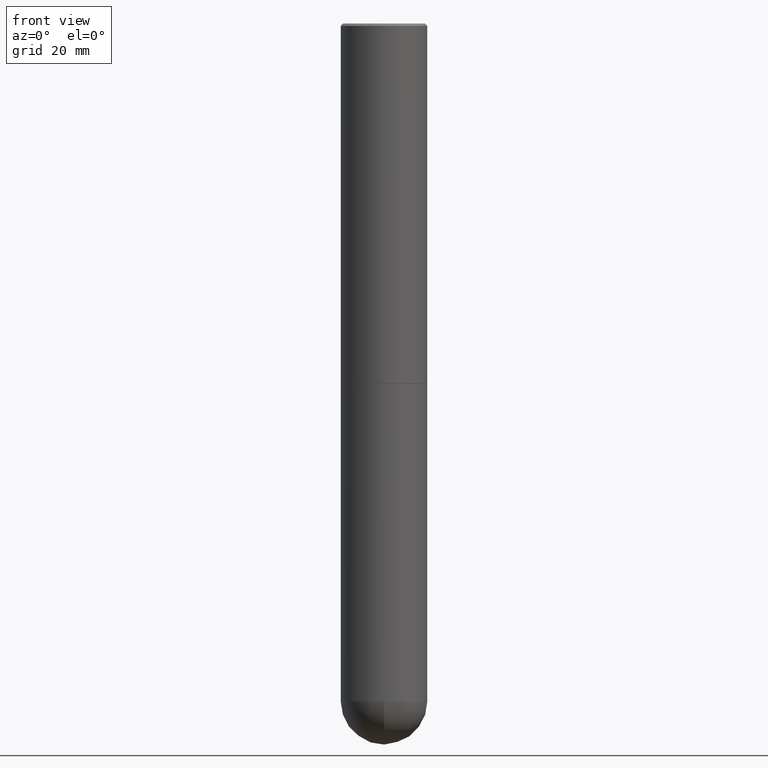
[diagram: clean part render]
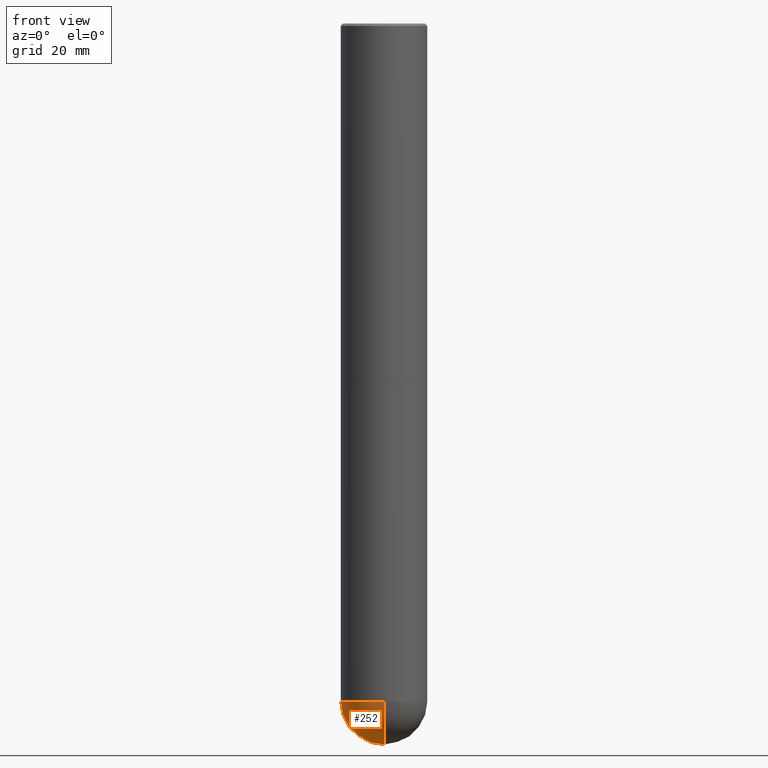
[diagram: same view with one face highlighted and labeled with its STEP entity id]
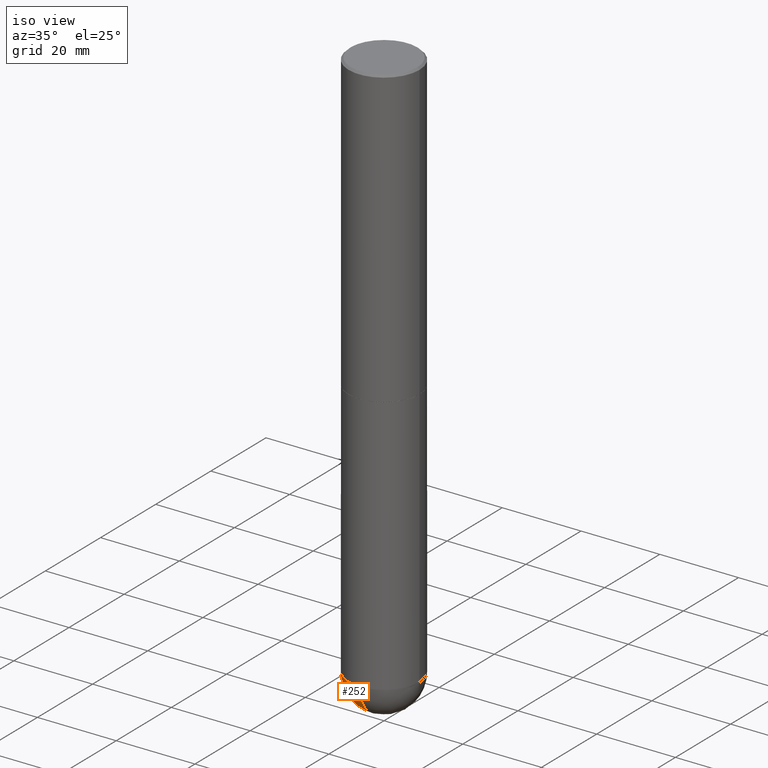
[diagram: same view with one face highlighted and labeled with its STEP entity id]
A machine part, front view. The second image highlights one B-rep face of the part: STEP entity #252.
A second angle (iso view) of the same face is appended — the face is thin or edge-on in the first view.
In plain terms, the highlighted spherical surface has radius 9.0005 mm.
Its self-contained STEP definition (entity closure, byte-faithful):
#1 = ORIENTED_EDGE ( 'NONE', *, *, #145, .T. ) ;
#13 = VERTEX_POINT ( 'NONE', #363 ) ;
#19 = AXIS2_PLACEMENT_3D ( 'NONE', #258, #381, #225 ) ;
#20 = CIRCLE ( 'NONE', #19, 0.3543500000000002204 ) ;
#21 = DIRECTION ( 'NONE',  ( 6.982962677686265922E-15, 1.000000000000000000, -3.083784951222533328E-15 ) ) ;
#38 = AXIS2_PLACEMENT_3D ( 'NONE', #153, #308, #244 ) ;
#54 = CARTESIAN_POINT ( 'NONE',  ( 1.324404438554073486E-28, -1.985591900225917417E-14, -5.551149999999999807 ) ) ;
#55 = EDGE_CURVE ( 'NONE', #297, #188, #408, .T. ) ;
#56 = DIRECTION ( 'NONE',  ( 1.000000000000000000, -6.982962677686261189E-15, 0.000000000000000000 ) ) ;
#60 = DIRECTION ( 'NONE',  ( -1.000000000000000000, 7.105427357601001070E-15, -4.926315508542082329E-29 ) ) ;
#73 = EDGE_LOOP ( 'NONE', ( #360, #1, #142, #116 ) ) ;
#88 = DIRECTION ( 'NONE',  ( -2.445468806185136597E-29, 3.491481338843145583E-15, 1.000000000000000000 ) ) ;
#112 = VERTEX_POINT ( 'NONE', #161 ) ;
#116 = ORIENTED_EDGE ( 'NONE', *, *, #55, .F. ) ;
#121 = CARTESIAN_POINT ( 'NONE',  ( -0.3543499999999999428, -1.232770860749472642E-14, -5.551149999999999807 ) ) ;
#122 = CARTESIAN_POINT ( 'NONE',  ( 1.357516416345461774E-28, -1.938173663411912545E-14, -5.551149999999999807 ) ) ;
#142 = ORIENTED_EDGE ( 'NONE', *, *, #287, .F. ) ;
#145 = EDGE_CURVE ( 'NONE', #13, #112, #295, .T. ) ;
#153 = CARTESIAN_POINT ( 'NONE',  ( 1.357516416345461774E-28, -1.938173663411912545E-14, -5.551149999999999807 ) ) ;
#161 = CARTESIAN_POINT ( 'NONE',  ( -2.517808184165781285E-15, -0.3543500000000196493, -5.551149999999998919 ) ) ;
#184 = DIRECTION ( 'NONE',  ( -7.105427357601001070E-15, -1.000000000000000000, 0.000000000000000000 ) ) ;
#186 = FACE_OUTER_BOUND ( 'NONE', #73, .T. ) ;
#188 = VERTEX_POINT ( 'NONE', #121 ) ;
#193 = CIRCLE ( 'NONE', #358, 0.3543499999999999428 ) ;
#197 = EDGE_CURVE ( 'NONE', #13, #297, #20, .T. ) ;
#215 = CARTESIAN_POINT ( 'NONE',  ( 1.324404438554073486E-28, -1.985591900225917417E-14, -5.551149999999999807 ) ) ;
#225 = DIRECTION ( 'NONE',  ( 6.982962677686265133E-15, 1.000000000000000000, 0.000000000000000000 ) ) ;
#243 = SPHERICAL_SURFACE ( 'NONE', #261, 0.3543500000000002204 ) ;
#244 = DIRECTION ( 'NONE',  ( 1.000000000000000000, -6.982962677686261189E-15, 0.000000000000000000 ) ) ;
#252 = ADVANCED_FACE ( 'NONE', ( #186 ), #243, .T. ) ;
#258 = CARTESIAN_POINT ( 'NONE',  ( 1.324404438554073486E-28, -1.985591900225917417E-14, -5.551149999999999807 ) ) ;
#261 = AXIS2_PLACEMENT_3D ( 'NONE', #215, #339, #21 ) ;
#287 = EDGE_CURVE ( 'NONE', #188, #112, #193, .T. ) ;
#295 = CIRCLE ( 'NONE', #299, 0.3543500000000002204 ) ;
#297 = VERTEX_POINT ( 'NONE', #365 ) ;
#299 = AXIS2_PLACEMENT_3D ( 'NONE', #54, #60, #184 ) ;
#308 = DIRECTION ( 'NONE',  ( -2.445468806185136597E-29, 3.491481338843145583E-15, 1.000000000000000000 ) ) ;
#339 = DIRECTION ( 'NONE',  ( -1.000000000000000000, 6.982962677686265922E-15, -4.883557194083112340E-29 ) ) ;
#358 = AXIS2_PLACEMENT_3D ( 'NONE', #122, #88, #56 ) ;
#360 = ORIENTED_EDGE ( 'NONE', *, *, #197, .F. ) ;
#363 = CARTESIAN_POINT ( 'NONE',  ( 1.412574766574097249E-28, -2.107142773501435227E-14, -5.905499999999999972 ) ) ;
#365 = CARTESIAN_POINT ( 'NONE',  ( 2.474412824838263195E-15, 0.3543499999999804584, -5.551150000000000695 ) ) ;
#381 = DIRECTION ( 'NONE',  ( 1.000000000000000000, -6.982962677686265922E-15, 4.883557194083112340E-29 ) ) ;
#408 = CIRCLE ( 'NONE', #38, 0.3543499999999999428 ) ;